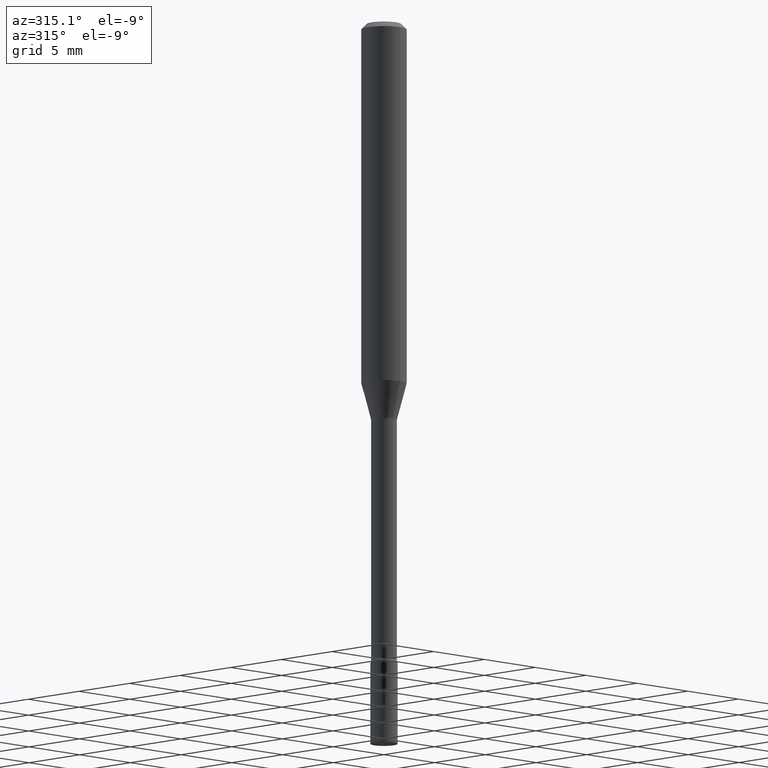
[diagram: clean part render]
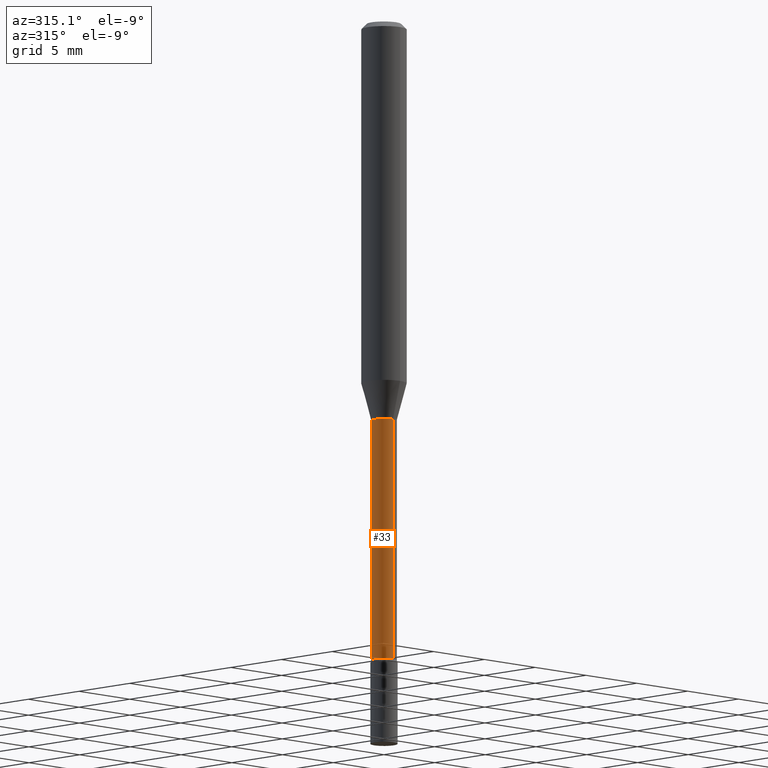
[diagram: same view with one face highlighted and labeled with its STEP entity id]
A machine part, auxiliary view. The second image highlights one B-rep face of the part: STEP entity #33.
In plain terms, the highlighted cylindrical surface (edge-blend (fillet) strip) has radius 0.8954 mm, axis along (-0, 0, 1).
Its self-contained STEP definition (entity closure, byte-faithful):
#16 = VERTEX_POINT ( 'NONE', #465 ) ;
#33 = ADVANCED_FACE ( 'NONE', ( #428 ), #102, .T. ) ;
#80 = CARTESIAN_POINT ( 'NONE',  ( 2.694930388159568916E-29, -3.847402079696808984E-15, -1.101974787463810834 ) ) ;
#91 = DIRECTION ( 'NONE',  ( -2.445546321764708245E-29, 3.491370332121285738E-15, 1.000000000000000000 ) ) ;
#97 = AXIS2_PLACEMENT_3D ( 'NONE', #190, #188, #260 ) ;
#102 = CYLINDRICAL_SURFACE ( 'NONE', #179, 0.03525000000000003825 ) ;
#104 = EDGE_CURVE ( 'NONE', #16, #177, #389, .T. ) ;
#114 = DIRECTION ( 'NONE',  ( -2.445546321764708525E-29, 3.491370332121285738E-15, 1.000000000000000000 ) ) ;
#116 = VECTOR ( 'NONE', #91, 39.37007874015748143 ) ;
#120 = LINE ( 'NONE', #169, #206 ) ;
#123 = CIRCLE ( 'NONE', #217, 0.03524999999999999661 ) ;
#125 = CARTESIAN_POINT ( 'NONE',  ( 2.504663143554355873E-16, 0.03525000000000003825, -1.230708042072754750E-16 ) ) ;
#140 = DIRECTION ( 'NONE',  ( -6.982962677686266711E-15, -1.000000000000000000, 3.491370332121286133E-15 ) ) ;
#147 = VERTEX_POINT ( 'NONE', #468 ) ;
#152 = ORIENTED_EDGE ( 'NONE', *, *, #319, .T. ) ;
#162 = ORIENTED_EDGE ( 'NONE', *, *, #316, .F. ) ;
#169 = CARTESIAN_POINT ( 'NONE',  ( -2.461494343884411737E-16, -0.03525000000000003825, 1.230708042072754750E-16 ) ) ;
#177 = VERTEX_POINT ( 'NONE', #320 ) ;
#179 = AXIS2_PLACEMENT_3D ( 'NONE', #340, #415, #140 ) ;
#188 = DIRECTION ( 'NONE',  ( -2.445546321764708525E-29, 3.491370332121285738E-15, 1.000000000000000000 ) ) ;
#190 = CARTESIAN_POINT ( 'NONE',  ( 4.321520649170351713E-29, -6.169594437808623412E-15, -1.767098259685360606 ) ) ;
#201 = CARTESIAN_POINT ( 'NONE',  ( -2.461494343884138594E-16, -0.03525000000000384076, -1.101974787463810834 ) ) ;
#206 = VECTOR ( 'NONE', #487, 39.37007874015748143 ) ;
#217 = AXIS2_PLACEMENT_3D ( 'NONE', #80, #114, #282 ) ;
#232 = ORIENTED_EDGE ( 'NONE', *, *, #104, .T. ) ;
#257 = VERTEX_POINT ( 'NONE', #201 ) ;
#260 = DIRECTION ( 'NONE',  ( -6.982962677686266711E-15, -1.000000000000000000, 0.000000000000000000 ) ) ;
#282 = DIRECTION ( 'NONE',  ( -6.982962677686265133E-15, -1.000000000000000000, 3.874961693140799059E-15 ) ) ;
#284 = EDGE_LOOP ( 'NONE', ( #328, #232, #152, #162 ) ) ;
#316 = EDGE_CURVE ( 'NONE', #147, #257, #123, .T. ) ;
#319 = EDGE_CURVE ( 'NONE', #177, #257, #120, .T. ) ;
#320 = CARTESIAN_POINT ( 'NONE',  ( -2.461494343883982794E-16, -0.03525000000000625550, -1.767098259685360606 ) ) ;
#328 = ORIENTED_EDGE ( 'NONE', *, *, #421, .F. ) ;
#340 = CARTESIAN_POINT ( 'NONE',  ( 0.000000000000000000, 0.000000000000000000, 0.000000000000000000 ) ) ;
#389 = CIRCLE ( 'NONE', #97, 0.03525000000000008682 ) ;
#415 = DIRECTION ( 'NONE',  ( -2.445546321764708525E-29, 3.491370332121285738E-15, 1.000000000000000000 ) ) ;
#421 = EDGE_CURVE ( 'NONE', #16, #147, #490, .T. ) ;
#428 = FACE_OUTER_BOUND ( 'NONE', #284, .T. ) ;
#465 = CARTESIAN_POINT ( 'NONE',  ( 2.584599201327800595E-16, 0.03524999999999392508, -1.767098259685360606 ) ) ;
#468 = CARTESIAN_POINT ( 'NONE',  ( 2.504663143554787774E-16, 0.03524999999999615247, -1.101974787463811056 ) ) ;
#487 = DIRECTION ( 'NONE',  ( -2.445546321764708245E-29, 3.491370332121285738E-15, 1.000000000000000000 ) ) ;
#490 = LINE ( 'NONE', #125, #116 ) ;